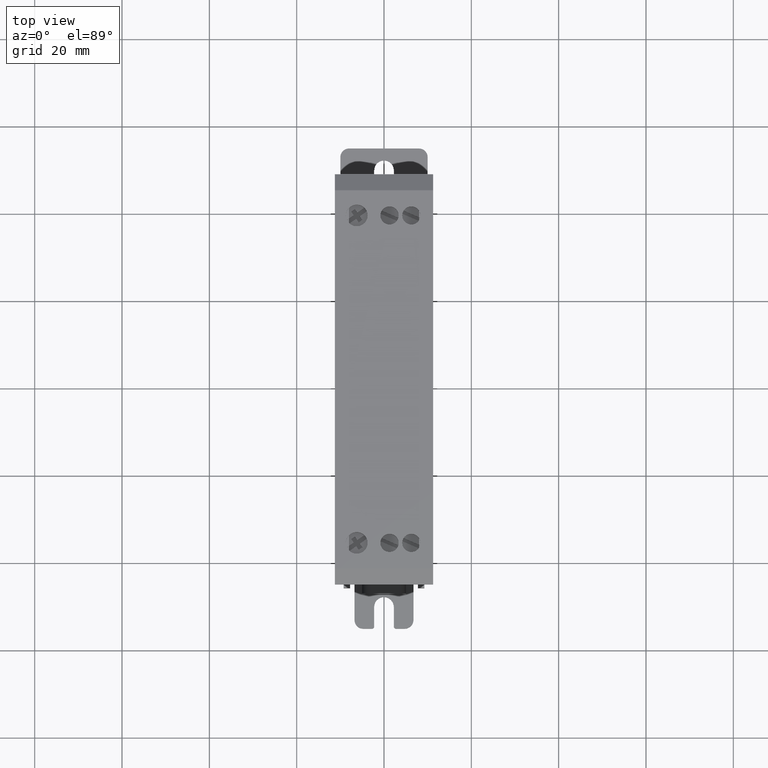
[diagram: clean part render]
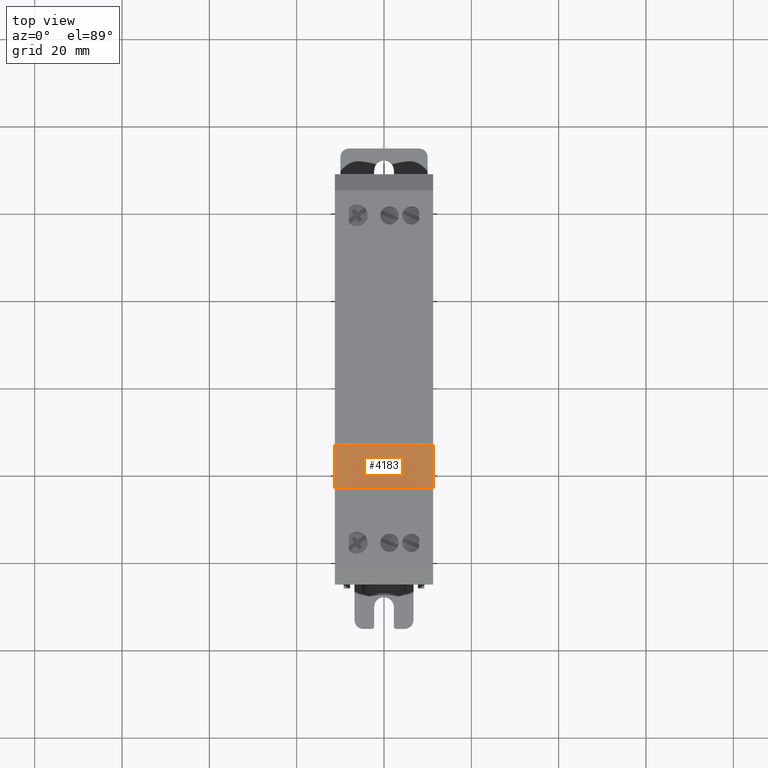
[diagram: same view with one face highlighted and labeled with its STEP entity id]
A machine part, top view. The second image highlights one B-rep face of the part: STEP entity #4183.
In plain terms, the highlighted planar face has unit normal (0, 0, 1).
Its self-contained STEP definition (entity closure, byte-faithful):
#43 = EDGE_CURVE ( 'NONE', #6820, #1318, #12280, .T. ) ;
#221 = CARTESIAN_POINT ( 'NONE',  ( 0.4429133858267716439, -0.7874015748031496509, 2.007874015748031482 ) ) ;
#710 = CARTESIAN_POINT ( 'NONE',  ( -1.543756929133858113E-16, -0.9842519685039370358, 2.007874015748031482 ) ) ;
#852 = ORIENTED_EDGE ( 'NONE', *, *, #43, .T. ) ;
#1304 = EDGE_CURVE ( 'NONE', #3465, #6820, #6431, .T. ) ;
#1318 = VERTEX_POINT ( 'NONE', #1427 ) ;
#1427 = CARTESIAN_POINT ( 'NONE',  ( -0.4429133858267716439, -0.9842519685039370358, 2.007874015748031482 ) ) ;
#2430 = CARTESIAN_POINT ( 'NONE',  ( 0.4429133858267716439, -0.5905511811023621549, 2.007874015748031482 ) ) ;
#2613 = PLANE ( 'NONE',  #12921 ) ;
#3465 = VERTEX_POINT ( 'NONE', #2430 ) ;
#3906 = DIRECTION ( 'NONE',  ( -1.000000000000000000, -0.000000000000000000, -0.000000000000000000 ) ) ;
#4183 = ADVANCED_FACE ( 'NONE', ( #12869 ), #2613, .T. ) ;
#4581 = VECTOR ( 'NONE', #12138, 39.37007874015748143 ) ;
#4750 = VERTEX_POINT ( 'NONE', #12610 ) ;
#5716 = VECTOR ( 'NONE', #6542, 39.37007874015748143 ) ;
#6431 = LINE ( 'NONE', #9151, #10211 ) ;
#6542 = DIRECTION ( 'NONE',  ( 0.000000000000000000, 1.000000000000000000, 0.000000000000000000 ) ) ;
#6820 = VERTEX_POINT ( 'NONE', #13143 ) ;
#7107 = LINE ( 'NONE', #710, #4581 ) ;
#8489 = DIRECTION ( 'NONE',  ( -0.000000000000000000, -1.000000000000000000, -0.000000000000000000 ) ) ;
#9151 = CARTESIAN_POINT ( 'NONE',  ( -1.543756929133858113E-16, -0.5905511811023621549, 2.007874015748031482 ) ) ;
#9896 = EDGE_CURVE ( 'NONE', #4750, #3465, #15273, .T. ) ;
#10211 = VECTOR ( 'NONE', #3906, 39.37007874015748143 ) ;
#10236 = DIRECTION ( 'NONE',  ( 0.000000000000000000, 0.000000000000000000, 1.000000000000000000 ) ) ;
#10263 = ORIENTED_EDGE ( 'NONE', *, *, #1304, .T. ) ;
#11663 = EDGE_LOOP ( 'NONE', ( #11773, #13720, #10263, #852 ) ) ;
#11773 = ORIENTED_EDGE ( 'NONE', *, *, #13428, .T. ) ;
#12138 = DIRECTION ( 'NONE',  ( 1.000000000000000000, 0.000000000000000000, 0.000000000000000000 ) ) ;
#12280 = LINE ( 'NONE', #13431, #14391 ) ;
#12610 = CARTESIAN_POINT ( 'NONE',  ( 0.4429133858267716439, -0.9842519685039370358, 2.007874015748031482 ) ) ;
#12709 = DIRECTION ( 'NONE',  ( 1.000000000000000000, 0.000000000000000000, 0.000000000000000000 ) ) ;
#12869 = FACE_OUTER_BOUND ( 'NONE', #11663, .T. ) ;
#12921 = AXIS2_PLACEMENT_3D ( 'NONE', #14019, #10236, #12709 ) ;
#13143 = CARTESIAN_POINT ( 'NONE',  ( -0.4429133858267716439, -0.5905511811023621549, 2.007874015748031482 ) ) ;
#13428 = EDGE_CURVE ( 'NONE', #1318, #4750, #7107, .T. ) ;
#13431 = CARTESIAN_POINT ( 'NONE',  ( -0.4429133858267716439, -0.7874015748031496509, 2.007874015748031482 ) ) ;
#13720 = ORIENTED_EDGE ( 'NONE', *, *, #9896, .T. ) ;
#14019 = CARTESIAN_POINT ( 'NONE',  ( -1.543756929133858113E-16, -0.7874015748031496509, 2.007874015748031482 ) ) ;
#14391 = VECTOR ( 'NONE', #8489, 39.37007874015748143 ) ;
#15273 = LINE ( 'NONE', #221, #5716 ) ;